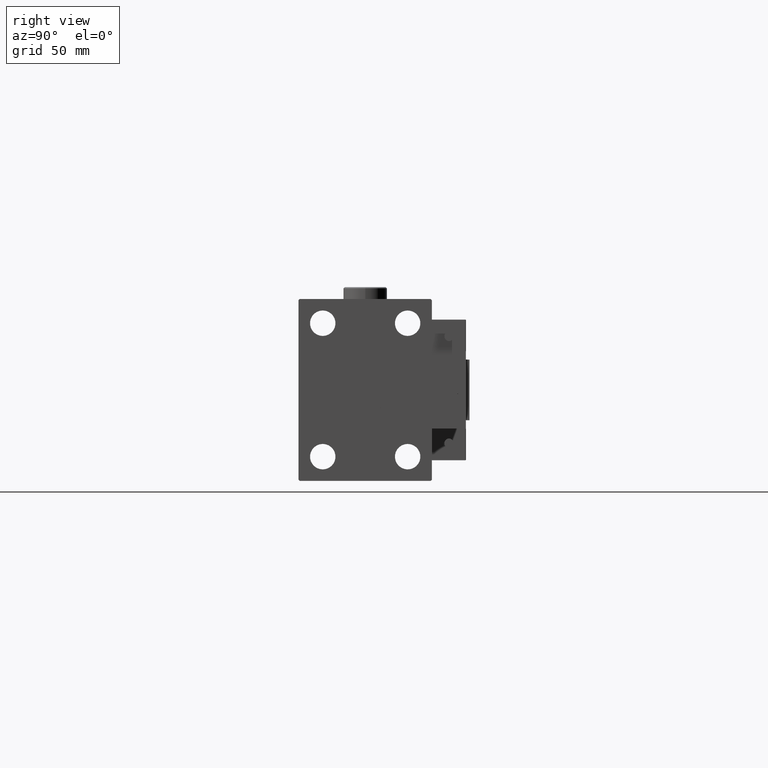
[diagram: clean part render]
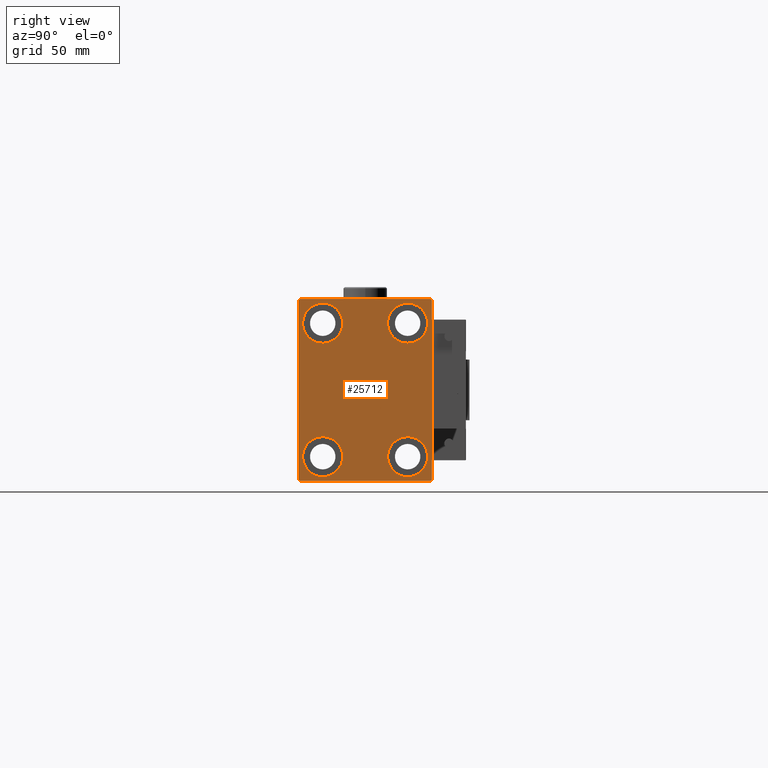
[diagram: same view with one face highlighted and labeled with its STEP entity id]
A machine part, right view. The second image highlights one B-rep face of the part: STEP entity #25712.
In plain terms, the highlighted planar face has unit normal (1, 0, 0).
Its self-contained STEP definition (entity closure, byte-faithful):
#254 = DIRECTION ( 'NONE',  ( -0.000000000000000000, 0.7071067811865474617, -0.7071067811865474617 ) ) ;
#371 = DIRECTION ( 'NONE',  ( -1.000000000000000000, -0.000000000000000000, -0.000000000000000000 ) ) ;
#407 = EDGE_CURVE ( 'NONE', #48283, #46637, #6225, .T. ) ;
#1118 = VERTEX_POINT ( 'NONE', #25975 ) ;
#1723 = CARTESIAN_POINT ( 'NONE',  ( 155.0000000000000000, 17.50000000000000355, 35.74999999999999289 ) ) ;
#2730 = VECTOR ( 'NONE', #2878, 1000.000000000000000 ) ;
#2785 = VECTOR ( 'NONE', #39954, 1000.000000000000000 ) ;
#2878 = DIRECTION ( 'NONE',  ( 0.000000000000000000, -1.000000000000000000, -1.261617073437677999E-16 ) ) ;
#3364 = CARTESIAN_POINT ( 'NONE',  ( 155.0000000000000000, 17.50000000000000355, 27.49999999999999645 ) ) ;
#3449 = AXIS2_PLACEMENT_3D ( 'NONE', #24604, #41363, #54256 ) ;
#3562 = ORIENTED_EDGE ( 'NONE', *, *, #23767, .T. ) ;
#4451 = VERTEX_POINT ( 'NONE', #43919 ) ;
#4587 = CIRCLE ( 'NONE', #26614, 8.249999999999992895 ) ;
#4818 = VERTEX_POINT ( 'NONE', #1723 ) ;
#5721 = CARTESIAN_POINT ( 'NONE',  ( 155.0000000000000000, -17.49999999999999645, 19.25000000000000000 ) ) ;
#6125 = DIRECTION ( 'NONE',  ( 0.000000000000000000, -0.7071067811865279218, -0.7071067811865671127 ) ) ;
#6152 = CARTESIAN_POINT ( 'NONE',  ( 155.0000000000000000, -17.50000000000000355, -19.25000000000000355 ) ) ;
#6225 = CIRCLE ( 'NONE', #13234, 8.250000000000000000 ) ;
#6680 = CARTESIAN_POINT ( 'NONE',  ( 155.0000000000000000, 17.49999999999999645, -27.50000000000000355 ) ) ;
#7201 = ORIENTED_EDGE ( 'NONE', *, *, #407, .T. ) ;
#7490 = VERTEX_POINT ( 'NONE', #17259 ) ;
#8050 = ORIENTED_EDGE ( 'NONE', *, *, #27615, .T. ) ;
#8199 = ORIENTED_EDGE ( 'NONE', *, *, #48355, .T. ) ;
#8389 = VECTOR ( 'NONE', #48621, 999.9999999999998863 ) ;
#8866 = DIRECTION ( 'NONE',  ( 0.000000000000000000, 0.000000000000000000, 1.000000000000000000 ) ) ;
#8932 = EDGE_CURVE ( 'NONE', #7490, #51607, #11802, .T. ) ;
#9024 = EDGE_CURVE ( 'NONE', #10687, #41611, #21056, .T. ) ;
#9738 = VECTOR ( 'NONE', #37428, 1000.000000000000114 ) ;
#9968 = CARTESIAN_POINT ( 'NONE',  ( 155.0000000000000000, 17.49999999999999645, -35.75000000000000711 ) ) ;
#10019 = CARTESIAN_POINT ( 'NONE',  ( 155.0000000000000000, 17.49999999999999645, -27.50000000000000355 ) ) ;
#10687 = VERTEX_POINT ( 'NONE', #24105 ) ;
#10703 = ORIENTED_EDGE ( 'NONE', *, *, #37249, .T. ) ;
#10814 = DIRECTION ( 'NONE',  ( 0.000000000000000000, -9.251858538542970348E-17, 1.000000000000000000 ) ) ;
#11085 = CARTESIAN_POINT ( 'NONE',  ( 155.0000000000000000, 27.50000000000000355, -37.50000000000000000 ) ) ;
#11361 = CARTESIAN_POINT ( 'NONE',  ( 155.0000000000000000, -27.50000000000000355, -37.50000000000000000 ) ) ;
#11601 = DIRECTION ( 'NONE',  ( 0.000000000000000000, 0.000000000000000000, 1.000000000000000000 ) ) ;
#11802 = LINE ( 'NONE', #49366, #41208 ) ;
#12973 = EDGE_CURVE ( 'NONE', #49020, #18810, #23797, .T. ) ;
#13023 = EDGE_CURVE ( 'NONE', #36438, #4451, #14153, .T. ) ;
#13234 = AXIS2_PLACEMENT_3D ( 'NONE', #10019, #43591, #22984 ) ;
#13306 = FACE_BOUND ( 'NONE', #53417, .T. ) ;
#14153 = CIRCLE ( 'NONE', #15008, 8.249999999999992895 ) ;
#15008 = AXIS2_PLACEMENT_3D ( 'NONE', #20744, #371, #8866 ) ;
#15676 = ORIENTED_EDGE ( 'NONE', *, *, #40822, .T. ) ;
#15993 = EDGE_CURVE ( 'NONE', #45997, #44587, #49227, .T. ) ;
#16613 = CARTESIAN_POINT ( 'NONE',  ( 155.0000000000000000, -27.50000000000000355, 37.00000000000000000 ) ) ;
#16727 = ORIENTED_EDGE ( 'NONE', *, *, #9024, .T. ) ;
#17259 = CARTESIAN_POINT ( 'NONE',  ( 155.0000000000000000, -27.50000000000000355, -37.00000000000000000 ) ) ;
#17428 = FACE_BOUND ( 'NONE', #42691, .T. ) ;
#17986 = FACE_OUTER_BOUND ( 'NONE', #25853, .T. ) ;
#18001 = EDGE_LOOP ( 'NONE', ( #34655, #10703 ) ) ;
#18068 = VERTEX_POINT ( 'NONE', #36880 ) ;
#18618 = VECTOR ( 'NONE', #24064, 1000.000000000000000 ) ;
#18810 = VERTEX_POINT ( 'NONE', #25187 ) ;
#19057 = LINE ( 'NONE', #48465, #32164 ) ;
#19625 = DIRECTION ( 'NONE',  ( -1.000000000000000000, -0.000000000000000000, -0.000000000000000000 ) ) ;
#20027 = LINE ( 'NONE', #52732, #8389 ) ;
#20744 = CARTESIAN_POINT ( 'NONE',  ( 155.0000000000000000, -17.49999999999999645, 27.49999999999999645 ) ) ;
#21056 = CIRCLE ( 'NONE', #3449, 8.250000000000000000 ) ;
#22276 = EDGE_CURVE ( 'NONE', #46637, #48283, #49509, .T. ) ;
#22984 = DIRECTION ( 'NONE',  ( 0.000000000000000000, 0.000000000000000000, 1.000000000000000000 ) ) ;
#23767 = EDGE_CURVE ( 'NONE', #41611, #10687, #27619, .T. ) ;
#23769 = LINE ( 'NONE', #11085, #46026 ) ;
#23797 = LINE ( 'NONE', #40568, #2730 ) ;
#24064 = DIRECTION ( 'NONE',  ( 0.000000000000000000, 1.000000000000000000, 0.000000000000000000 ) ) ;
#24105 = CARTESIAN_POINT ( 'NONE',  ( 155.0000000000000000, -17.50000000000000355, -35.75000000000000711 ) ) ;
#24221 = CARTESIAN_POINT ( 'NONE',  ( 155.0000000000000000, -17.49999999999999645, 27.49999999999999645 ) ) ;
#24604 = CARTESIAN_POINT ( 'NONE',  ( 155.0000000000000000, -17.50000000000000355, -27.50000000000000355 ) ) ;
#24927 = AXIS2_PLACEMENT_3D ( 'NONE', #6680, #19625, #11601 ) ;
#25122 = AXIS2_PLACEMENT_3D ( 'NONE', #36346, #52800, #33011 ) ;
#25187 = CARTESIAN_POINT ( 'NONE',  ( 155.0000000000000000, -27.00000000000003197, 37.50000000000000000 ) ) ;
#25444 = ORIENTED_EDGE ( 'NONE', *, *, #15993, .T. ) ;
#25450 = CARTESIAN_POINT ( 'NONE',  ( 155.0000000000000000, 0.000000000000000000, 0.000000000000000000 ) ) ;
#25712 = ADVANCED_FACE ( 'NONE', ( #17428, #43017, #46856, #13306, #17986 ), #26271, .T. ) ;
#25853 = EDGE_LOOP ( 'NONE', ( #29131, #8199, #32451, #53299, #34779, #25444, #31589, #8050 ) ) ;
#25975 = CARTESIAN_POINT ( 'NONE',  ( 155.0000000000000000, 17.50000000000000355, 19.25000000000000000 ) ) ;
#26271 = PLANE ( 'NONE',  #52304 ) ;
#26614 = AXIS2_PLACEMENT_3D ( 'NONE', #24221, #29140, #40977 ) ;
#26723 = CARTESIAN_POINT ( 'NONE',  ( 155.0000000000000000, 27.50000000000000355, -37.00000000000002842 ) ) ;
#27048 = CARTESIAN_POINT ( 'NONE',  ( 155.0000000000000000, -27.50000000000000355, 37.50000000000000000 ) ) ;
#27166 = EDGE_CURVE ( 'NONE', #1118, #4818, #50569, .T. ) ;
#27615 = EDGE_CURVE ( 'NONE', #18068, #49020, #20027, .T. ) ;
#27619 = CIRCLE ( 'NONE', #41630, 8.250000000000000000 ) ;
#29131 = ORIENTED_EDGE ( 'NONE', *, *, #12973, .T. ) ;
#29140 = DIRECTION ( 'NONE',  ( -1.000000000000000000, -0.000000000000000000, -0.000000000000000000 ) ) ;
#30387 = DIRECTION ( 'NONE',  ( 0.000000000000000000, 0.000000000000000000, -1.000000000000000000 ) ) ;
#31168 = LINE ( 'NONE', #27048, #2785 ) ;
#31438 = VERTEX_POINT ( 'NONE', #16613 ) ;
#31498 = LINE ( 'NONE', #11361, #18618 ) ;
#31589 = ORIENTED_EDGE ( 'NONE', *, *, #41668, .T. ) ;
#32164 = VECTOR ( 'NONE', #6125, 1000.000000000000000 ) ;
#32451 = ORIENTED_EDGE ( 'NONE', *, *, #34918, .T. ) ;
#33011 = DIRECTION ( 'NONE',  ( 0.000000000000000000, 0.000000000000000000, 1.000000000000000000 ) ) ;
#33292 = EDGE_CURVE ( 'NONE', #51607, #45997, #31498, .T. ) ;
#34493 = DIRECTION ( 'NONE',  ( -1.000000000000000000, -0.000000000000000000, -0.000000000000000000 ) ) ;
#34655 = ORIENTED_EDGE ( 'NONE', *, *, #13023, .T. ) ;
#34779 = ORIENTED_EDGE ( 'NONE', *, *, #33292, .T. ) ;
#34918 = EDGE_CURVE ( 'NONE', #31438, #7490, #31168, .T. ) ;
#36081 = ORIENTED_EDGE ( 'NONE', *, *, #27166, .T. ) ;
#36346 = CARTESIAN_POINT ( 'NONE',  ( 155.0000000000000000, 17.50000000000000355, 27.49999999999999645 ) ) ;
#36438 = VERTEX_POINT ( 'NONE', #5721 ) ;
#36729 = CARTESIAN_POINT ( 'NONE',  ( 155.0000000000000000, -27.00000000000000355, -37.50000000000000000 ) ) ;
#36880 = CARTESIAN_POINT ( 'NONE',  ( 155.0000000000000000, 27.49999999999999645, 37.00000000000004263 ) ) ;
#37249 = EDGE_CURVE ( 'NONE', #4451, #36438, #4587, .T. ) ;
#37428 = DIRECTION ( 'NONE',  ( -0.000000000000000000, 0.7071067811865474617, 0.7071067811865474617 ) ) ;
#37480 = DIRECTION ( 'NONE',  ( -1.000000000000000000, -0.000000000000000000, -0.000000000000000000 ) ) ;
#38178 = CIRCLE ( 'NONE', #41648, 8.249999999999992895 ) ;
#38192 = CARTESIAN_POINT ( 'NONE',  ( 155.0000000000000000, 17.49999999999999645, -19.25000000000000355 ) ) ;
#38619 = CARTESIAN_POINT ( 'NONE',  ( 155.0000000000000000, -17.50000000000000355, -27.50000000000000355 ) ) ;
#39954 = DIRECTION ( 'NONE',  ( 0.000000000000000000, 0.000000000000000000, -1.000000000000000000 ) ) ;
#40568 = CARTESIAN_POINT ( 'NONE',  ( 155.0000000000000000, 27.49999999999999645, 37.50000000000000711 ) ) ;
#40822 = EDGE_CURVE ( 'NONE', #4818, #1118, #38178, .T. ) ;
#40977 = DIRECTION ( 'NONE',  ( 0.000000000000000000, 0.000000000000000000, 1.000000000000000000 ) ) ;
#41208 = VECTOR ( 'NONE', #254, 1000.000000000000114 ) ;
#41363 = DIRECTION ( 'NONE',  ( -1.000000000000000000, -0.000000000000000000, -0.000000000000000000 ) ) ;
#41441 = CARTESIAN_POINT ( 'NONE',  ( 155.0000000000000000, 27.00000000000003197, -37.50000000000000000 ) ) ;
#41587 = DIRECTION ( 'NONE',  ( 0.000000000000000000, 0.000000000000000000, 1.000000000000000000 ) ) ;
#41611 = VERTEX_POINT ( 'NONE', #6152 ) ;
#41630 = AXIS2_PLACEMENT_3D ( 'NONE', #38619, #34493, #51246 ) ;
#41648 = AXIS2_PLACEMENT_3D ( 'NONE', #3364, #37480, #41587 ) ;
#41668 = EDGE_CURVE ( 'NONE', #44587, #18068, #23769, .T. ) ;
#41933 = DIRECTION ( 'NONE',  ( 1.000000000000000000, 0.000000000000000000, 0.000000000000000000 ) ) ;
#42594 = CARTESIAN_POINT ( 'NONE',  ( 155.0000000000000000, 26.99999999999999645, 37.50000000000000711 ) ) ;
#42691 = EDGE_LOOP ( 'NONE', ( #7201, #52129 ) ) ;
#43017 = FACE_BOUND ( 'NONE', #18001, .T. ) ;
#43591 = DIRECTION ( 'NONE',  ( -1.000000000000000000, -0.000000000000000000, -0.000000000000000000 ) ) ;
#43919 = CARTESIAN_POINT ( 'NONE',  ( 155.0000000000000000, -17.49999999999999645, 35.74999999999999289 ) ) ;
#44587 = VERTEX_POINT ( 'NONE', #26723 ) ;
#45997 = VERTEX_POINT ( 'NONE', #41441 ) ;
#46026 = VECTOR ( 'NONE', #10814, 1000.000000000000000 ) ;
#46637 = VERTEX_POINT ( 'NONE', #38192 ) ;
#46856 = FACE_BOUND ( 'NONE', #48048, .T. ) ;
#48048 = EDGE_LOOP ( 'NONE', ( #36081, #15676 ) ) ;
#48283 = VERTEX_POINT ( 'NONE', #9968 ) ;
#48355 = EDGE_CURVE ( 'NONE', #18810, #31438, #19057, .T. ) ;
#48465 = CARTESIAN_POINT ( 'NONE',  ( 155.0000000000000000, -32.25000000000076028, 32.24999999999897682 ) ) ;
#48621 = DIRECTION ( 'NONE',  ( -0.000000000000000000, -0.7071067811865721087, 0.7071067811865230368 ) ) ;
#49020 = VERTEX_POINT ( 'NONE', #42594 ) ;
#49227 = LINE ( 'NONE', #49763, #9738 ) ;
#49366 = CARTESIAN_POINT ( 'NONE',  ( 155.0000000000000000, -32.25000000000000000, -32.25000000000000000 ) ) ;
#49509 = CIRCLE ( 'NONE', #24927, 8.250000000000000000 ) ;
#49763 = CARTESIAN_POINT ( 'NONE',  ( 155.0000000000000000, 32.25000000000001421, -32.25000000000001421 ) ) ;
#50569 = CIRCLE ( 'NONE', #25122, 8.249999999999992895 ) ;
#51246 = DIRECTION ( 'NONE',  ( 0.000000000000000000, 0.000000000000000000, 1.000000000000000000 ) ) ;
#51607 = VERTEX_POINT ( 'NONE', #36729 ) ;
#52129 = ORIENTED_EDGE ( 'NONE', *, *, #22276, .T. ) ;
#52304 = AXIS2_PLACEMENT_3D ( 'NONE', #25450, #41933, #30387 ) ;
#52732 = CARTESIAN_POINT ( 'NONE',  ( 155.0000000000000000, 32.24999999999906208, 32.25000000000130029 ) ) ;
#52800 = DIRECTION ( 'NONE',  ( -1.000000000000000000, -0.000000000000000000, -0.000000000000000000 ) ) ;
#53299 = ORIENTED_EDGE ( 'NONE', *, *, #8932, .T. ) ;
#53417 = EDGE_LOOP ( 'NONE', ( #16727, #3562 ) ) ;
#54256 = DIRECTION ( 'NONE',  ( 0.000000000000000000, 0.000000000000000000, 1.000000000000000000 ) ) ;